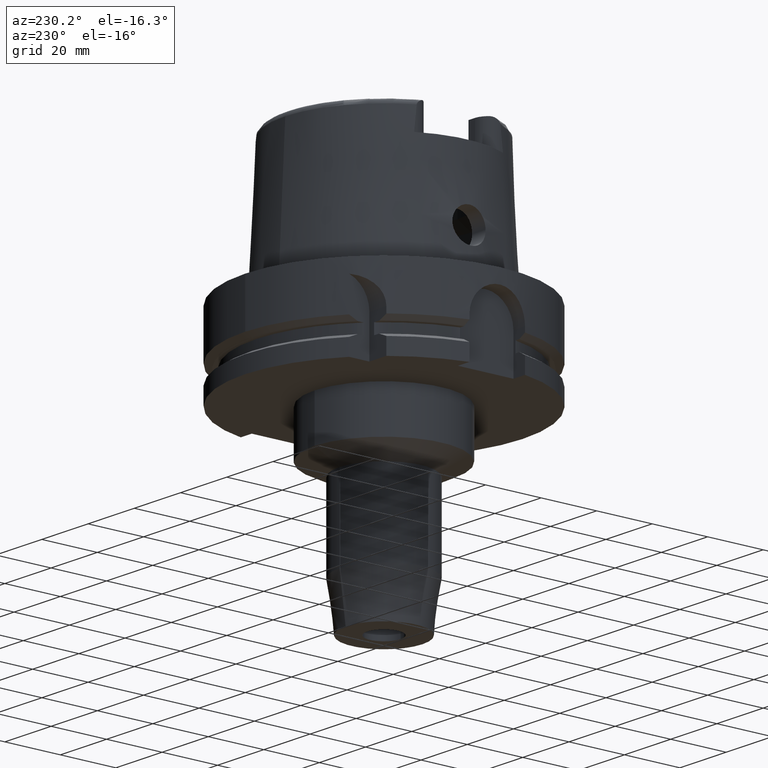
[diagram: clean part render]
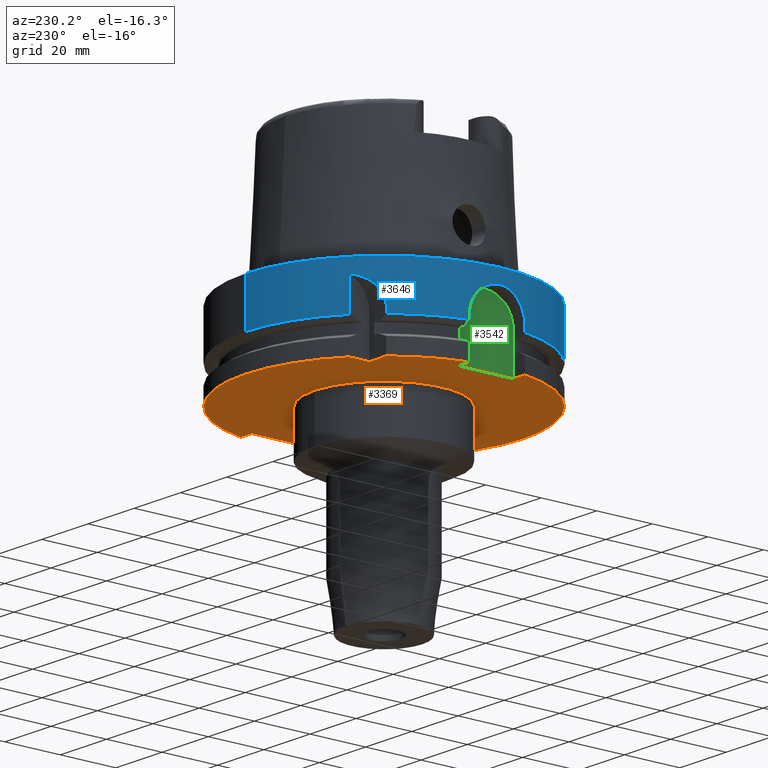
[diagram: same view with three faces highlighted in distinct colors, each labeled with its STEP entity id]
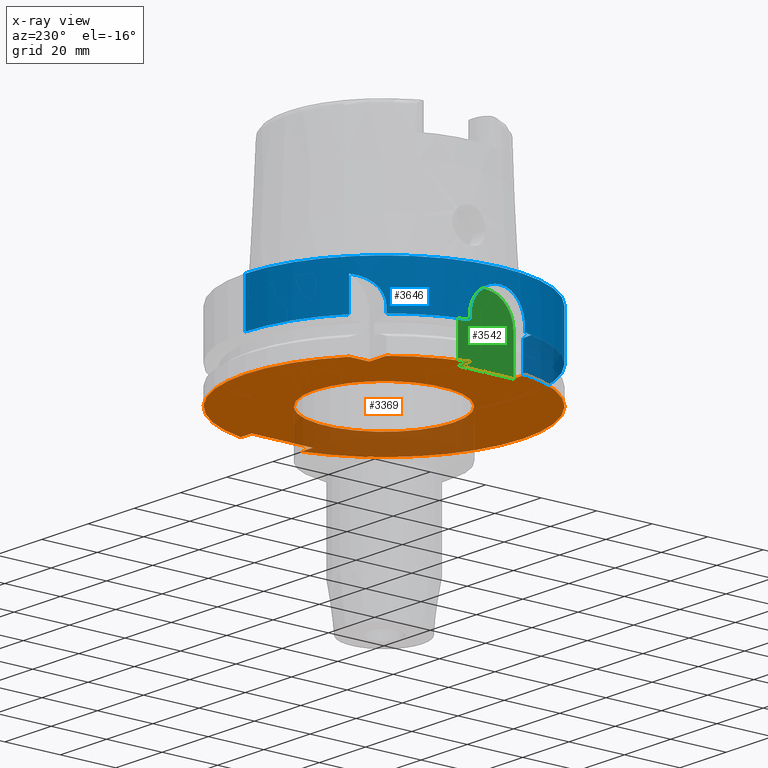
[diagram: x-ray of the same camera — body ghosted, the three highlighted faces saturated]
A machine part, auxiliary view with three faces highlighted in distinct colors.
The next image is the same camera in x-ray (body ghosted, the three faces saturated) — at least one of them is partly hidden behind the body in this view.
Their STEP definitions:

[orange] entity #3369 — the highlighted planar face has unit normal (0, 0, 1).
#1153=DIRECTION('',(-1.E0,-4.798503851106E-14,0.E0));
#1154=VECTOR('',#1153,7.329756630709E0);
#1155=CARTESIAN_POINT('',(-3.15E1,3.15E1,-2.9E1));
#1156=LINE('',#1155,#1154);
#1160=CARTESIAN_POINT('',(0.E0,0.E0,-2.9E1));
#1161=DIRECTION('',(0.E0,0.E0,1.E0));
#1162=DIRECTION('',(-7.765951326142E-1,6.3E-1,0.E0));
#1163=AXIS2_PLACEMENT_3D('',#1160,#1161,#1162);
#1168=DIRECTION('',(-1.E0,-4.627973610177E-14,0.E0));
#1169=VECTOR('',#1168,4.989794855662E0);
#1170=CARTESIAN_POINT('',(-4.4E1,-1.E1,-2.9E1));
#1171=LINE('',#1170,#1169);
#1175=CARTESIAN_POINT('',(0.E0,0.E0,-2.9E1));
#1176=DIRECTION('',(0.E0,0.E0,1.E0));
#1177=DIRECTION('',(-9.797958971133E-1,-2.E-1,0.E0));
#1178=AXIS2_PLACEMENT_3D('',#1175,#1176,#1177);
#1183=CARTESIAN_POINT('',(0.E0,0.E0,-2.9E1));
#1184=DIRECTION('',(0.E0,0.E0,1.E0));
#1185=DIRECTION('',(0.E0,-1.E0,0.E0));
#1186=AXIS2_PLACEMENT_3D('',#1183,#1184,#1185);
#1191=DIRECTION('',(-1.E0,-1.711257052401E-14,0.E0));
#1192=VECTOR('',#1191,4.774993593029E0);
#1193=CARTESIAN_POINT('',(4.877499359303E1,-1.1E1,-2.9E1));
#1194=LINE('',#1193,#1192);
#1198=CARTESIAN_POINT('',(0.E0,0.E0,-2.9E1));
#1199=DIRECTION('',(0.E0,0.E0,1.E0));
#1200=DIRECTION('',(9.754998718606E-1,2.2E-1,0.E0));
#1201=AXIS2_PLACEMENT_3D('',#1198,#1199,#1200);
#1206=CARTESIAN_POINT('',(0.E0,0.E0,-2.9E1));
#1207=DIRECTION('',(0.E0,0.E0,1.E0));
#1208=DIRECTION('',(0.E0,1.E0,0.E0));
#1209=AXIS2_PLACEMENT_3D('',#1206,#1207,#1208);
#1214=CARTESIAN_POINT('',(0.E0,0.E0,-2.9E1));
#1215=DIRECTION('',(0.E0,0.E0,-1.E0));
#1216=DIRECTION('',(0.E0,-1.E0,0.E0));
#1217=AXIS2_PLACEMENT_3D('',#1214,#1215,#1216);
#1222=CARTESIAN_POINT('',(0.E0,0.E0,-2.9E1));
#1223=DIRECTION('',(0.E0,0.E0,-1.E0));
#1224=DIRECTION('',(0.E0,1.E0,0.E0));
#1225=AXIS2_PLACEMENT_3D('',#1222,#1223,#1224);
#1230=DIRECTION('',(4.798503851106E-14,1.E0,0.E0));
#1231=VECTOR('',#1230,7.329756630709E0);
#1232=CARTESIAN_POINT('',(-3.15E1,3.15E1,-2.9E1));
#1233=LINE('',#1232,#1231);
#1276=DIRECTION('',(-1.E0,1.785659532940E-14,0.E0));
#1277=VECTOR('',#1276,4.774993593029E0);
#1278=CARTESIAN_POINT('',(4.877499359303E1,1.1E1,-2.9E1));
#1279=LINE('',#1278,#1277);
#1290=DIRECTION('',(0.E0,-1.E0,0.E0));
#1291=VECTOR('',#1290,2.2E1);
#1292=CARTESIAN_POINT('',(4.4E1,1.1E1,-2.9E1));
#1293=LINE('',#1292,#1291);
#1369=DIRECTION('',(0.E0,1.E0,0.E0));
#1370=VECTOR('',#1369,2.E1);
#1371=CARTESIAN_POINT('',(-4.4E1,-1.E1,-2.9E1));
#1372=LINE('',#1371,#1370);
#1392=DIRECTION('',(-1.E0,4.627973610177E-14,0.E0));
#1393=VECTOR('',#1392,4.989794855662E0);
#1394=CARTESIAN_POINT('',(-4.4E1,1.E1,-2.9E1));
#1395=LINE('',#1394,#1393);
#2345=CARTESIAN_POINT('',(0.E0,2.5E1,-2.9E1));
#2346=VERTEX_POINT('',#2345);
#2347=CARTESIAN_POINT('',(0.E0,-2.5E1,-2.9E1));
#2348=VERTEX_POINT('',#2347);
#2349=CARTESIAN_POINT('',(-3.15E1,3.15E1,-2.9E1));
#2350=CARTESIAN_POINT('',(-3.15E1,3.882975663071E1,-2.9E1));
#2351=VERTEX_POINT('',#2349);
#2352=VERTEX_POINT('',#2350);
#2353=CARTESIAN_POINT('',(-3.882975663071E1,3.15E1,-2.9E1));
#2354=VERTEX_POINT('',#2353);
#2355=CARTESIAN_POINT('',(-4.898979485566E1,1.E1,-2.9E1));
#2356=VERTEX_POINT('',#2355);
#2357=CARTESIAN_POINT('',(-4.4E1,1.E1,-2.9E1));
#2358=VERTEX_POINT('',#2357);
#2359=CARTESIAN_POINT('',(-4.4E1,-1.E1,-2.9E1));
#2360=VERTEX_POINT('',#2359);
#2361=CARTESIAN_POINT('',(-4.898979485566E1,-1.E1,-2.9E1));
#2362=VERTEX_POINT('',#2361);
#2363=CARTESIAN_POINT('',(-7.069043806178E-14,-5.E1,-2.9E1));
#2364=CARTESIAN_POINT('',(4.877499359303E1,-1.1E1,-2.9E1));
#2365=VERTEX_POINT('',#2363);
#2366=VERTEX_POINT('',#2364);
#2367=CARTESIAN_POINT('',(4.4E1,-1.1E1,-2.9E1));
#2368=VERTEX_POINT('',#2367);
#2369=CARTESIAN_POINT('',(4.4E1,1.1E1,-2.9E1));
#2370=VERTEX_POINT('',#2369);
#2371=CARTESIAN_POINT('',(4.877499359303E1,1.1E1,-2.9E1));
#2372=VERTEX_POINT('',#2371);
#2373=CARTESIAN_POINT('',(-6.019535474874E-14,5.E1,-2.9E1));
#2374=VERTEX_POINT('',#2373);
#3332=CARTESIAN_POINT('',(0.E0,0.E0,-2.9E1));
#3333=DIRECTION('',(0.E0,0.E0,1.E0));
#3334=DIRECTION('',(0.E0,1.E0,0.E0));
#3335=AXIS2_PLACEMENT_3D('',#3332,#3333,#3334);
#3336=PLANE('',#3335);
#3338=ORIENTED_EDGE('',*,*,#3337,.F.);
#3340=ORIENTED_EDGE('',*,*,#3339,.T.);
#3342=ORIENTED_EDGE('',*,*,#3341,.T.);
#3344=ORIENTED_EDGE('',*,*,#3343,.F.);
#3346=ORIENTED_EDGE('',*,*,#3345,.F.);
#3348=ORIENTED_EDGE('',*,*,#3347,.T.);
#3350=ORIENTED_EDGE('',*,*,#3349,.T.);
#3352=ORIENTED_EDGE('',*,*,#3351,.T.);
#3354=ORIENTED_EDGE('',*,*,#3353,.T.);
#3356=ORIENTED_EDGE('',*,*,#3355,.F.);
#3358=ORIENTED_EDGE('',*,*,#3357,.F.);
#3360=ORIENTED_EDGE('',*,*,#3359,.T.);
#3362=ORIENTED_EDGE('',*,*,#3361,.T.);
#3363=EDGE_LOOP('',(#3338,#3340,#3342,#3344,#3346,#3348,#3350,#3352,#3354,#3356,
#3358,#3360,#3362));
#3364=FACE_OUTER_BOUND('',#3363,.F.);
#3365=ORIENTED_EDGE('',*,*,#3311,.T.);
#3366=ORIENTED_EDGE('',*,*,#3327,.T.);
#3367=EDGE_LOOP('',(#3365,#3366));
#3368=FACE_BOUND('',#3367,.F.);
#1164=CIRCLE('',#1163,5.E1);
#1179=CIRCLE('',#1178,5.E1);
#1187=CIRCLE('',#1186,5.E1);
#1202=CIRCLE('',#1201,5.E1);
#1210=CIRCLE('',#1209,5.E1);
#1218=CIRCLE('',#1217,2.5E1);
#1226=CIRCLE('',#1225,2.5E1);
#3311=EDGE_CURVE('',#2348,#2346,#1218,.T.);
#3327=EDGE_CURVE('',#2346,#2348,#1226,.T.);
#3337=EDGE_CURVE('',#2351,#2352,#1233,.T.);
#3339=EDGE_CURVE('',#2351,#2354,#1156,.T.);
#3341=EDGE_CURVE('',#2354,#2356,#1164,.T.);
#3343=EDGE_CURVE('',#2358,#2356,#1395,.T.);
#3345=EDGE_CURVE('',#2360,#2358,#1372,.T.);
#3347=EDGE_CURVE('',#2360,#2362,#1171,.T.);
#3349=EDGE_CURVE('',#2362,#2365,#1179,.T.);
#3351=EDGE_CURVE('',#2365,#2366,#1187,.T.);
#3353=EDGE_CURVE('',#2366,#2368,#1194,.T.);
#3355=EDGE_CURVE('',#2370,#2368,#1293,.T.);
#3357=EDGE_CURVE('',#2372,#2370,#1279,.T.);
#3359=EDGE_CURVE('',#2372,#2374,#1202,.T.);
#3361=EDGE_CURVE('',#2374,#2352,#1210,.T.);
#3369=ADVANCED_FACE('',(#3364,#3368),#3336,.F.);

[blue] entity #3646 — the highlighted cylindrical surface (partial cylindrical patch) has radius 50 mm, axis along (0, 0, 1).
#1249=CARTESIAN_POINT('',(-3.150000355959E1,3.882975374305E1,
-1.675239179145E1));
#1434=CARTESIAN_POINT('',(-3.882975730068E1,3.149999917413E1,
-1.675240773890E1));
#1458=DIRECTION('',(-3.028823767049E-7,-2.457085509676E-7,-9.999999999999E-1));
#1459=VECTOR('',#1458,1.175239179145E1);
#1460=CARTESIAN_POINT('',(-3.15E1,3.882975663071E1,-5.000000000003E0));
#1461=LINE('',#1460,#1459);
#1465=DIRECTION('',(0.E0,2.969006079282E-14,-1.E0));
#1466=VECTOR('',#1465,1.675240473581E1);
#1467=CARTESIAN_POINT('',(0.E0,-5.E1,2.368475785867E-14));
#1468=LINE('',#1467,#1466);
#1472=DIRECTION('',(3.933032361779E-13,-2.534170336198E-14,1.E0));
#1473=VECTOR('',#1472,1.752404735809E0);
#1474=CARTESIAN_POINT('',(-4.898979485566E1,-1.E1,-1.675240473581E1));
#1475=LINE('',#1474,#1473);
#1479=DIRECTION('',(-4.014125812538E-13,-2.635537149646E-14,-1.E0));
#1480=VECTOR('',#1479,1.752404735809E0);
#1481=CARTESIAN_POINT('',(-4.898979485566E1,1.E1,-1.5E1));
#1482=LINE('',#1481,#1480);
#1486=DIRECTION('',(3.166955095345E-7,3.903884141555E-7,9.999999999999E-1));
#1487=VECTOR('',#1486,2.115509879686E0);
#1488=CARTESIAN_POINT('',(-3.882975730068E1,3.149999917413E1,
-1.675240773890E1));
#1489=LINE('',#1488,#1487);
#1493=CARTESIAN_POINT('',(-3.882975663071E1,3.15E1,-1.463689785921E1));
#1494=CARTESIAN_POINT('',(-3.882975663071E1,3.15E1,-1.433064803233E1));
#1495=CARTESIAN_POINT('',(-3.880705056296E1,3.152802066448E1,
-1.372017812259E1));
#1496=CARTESIAN_POINT('',(-3.870431505672E1,3.165424228568E1,
-1.280805712870E1));
#1497=CARTESIAN_POINT('',(-3.853134898971E1,3.186487739008E1,
-1.190703580362E1));
#1498=CARTESIAN_POINT('',(-3.828491004133E1,3.216100324139E1,
-1.102071004749E1));
#1499=CARTESIAN_POINT('',(-3.796157379828E1,3.254262098651E1,
-1.015741102110E1));
#1500=CARTESIAN_POINT('',(-3.755563743157E1,3.301103679744E1,
-9.321912596688E0));
#1501=CARTESIAN_POINT('',(-3.705884939259E1,3.356873427432E1,
-8.519818265426E0));
#1502=CARTESIAN_POINT('',(-3.646408685617E1,3.421504547700E1,
-7.761684897383E0));
#1503=CARTESIAN_POINT('',(-3.575808568325E1,3.495364276672E1,
-7.053872561831E0));
#1504=CARTESIAN_POINT('',(-3.493062799604E1,3.578229202033E1,
-6.409715318939E0));
#1505=CARTESIAN_POINT('',(-3.396218551338E1,3.670480651732E1,
-5.838564309226E0));
#1506=CARTESIAN_POINT('',(-3.283733424605E1,3.771697348972E1,
-5.356645395212E0));
#1507=CARTESIAN_POINT('',(-3.196697253866E1,3.845093285626E1,
-5.104966524152E0));
#1508=CARTESIAN_POINT('',(-3.15E1,3.882975663071E1,-5.000000000003E0));
#1531=CARTESIAN_POINT('',(0.E0,0.E0,-1.675240473581E1));
#1532=DIRECTION('',(0.E0,0.E0,1.E0));
#1533=DIRECTION('',(0.E0,1.E0,0.E0));
#1534=AXIS2_PLACEMENT_3D('',#1531,#1532,#1533);
#1689=DIRECTION('',(0.E0,-2.969006079282E-14,-1.E0));
#1690=VECTOR('',#1689,1.675240473581E1);
#1691=CARTESIAN_POINT('',(0.E0,5.E1,2.368475785867E-14));
#1692=LINE('',#1691,#1690);
#1764=CARTESIAN_POINT('',(0.E0,0.E0,-1.675240473581E1));
#1765=DIRECTION('',(0.E0,0.E0,1.E0));
#1766=DIRECTION('',(-9.797958971133E-1,-2.E-1,0.E0));
#1767=AXIS2_PLACEMENT_3D('',#1764,#1765,#1766);
#1918=CARTESIAN_POINT('',(0.E0,0.E0,1.421085471520E-14));
#1919=DIRECTION('',(0.E0,0.E0,-1.E0));
#1920=DIRECTION('',(0.E0,-1.E0,0.E0));
#1921=AXIS2_PLACEMENT_3D('',#1918,#1919,#1920);
#1950=CARTESIAN_POINT('',(-4.898979485566E1,1.E1,-1.5E1));
#1951=CARTESIAN_POINT('',(-4.898979485566E1,1.E1,-1.430993891426E1));
#1952=CARTESIAN_POINT('',(-4.901946876668E1,9.856614411408E0,
-1.292530793198E1));
#1953=CARTESIAN_POINT('',(-4.914637872950E1,9.212549068015E0,
-1.092502392860E1));
#1954=CARTESIAN_POINT('',(-4.933511997668E1,8.159236789539E0,
-9.090510315856E0));
#1955=CARTESIAN_POINT('',(-4.955239631670E1,6.738320453179E0,
-7.510320269654E0));
#1956=CARTESIAN_POINT('',(-4.975872816348E1,5.020257974574E0,
-6.265963771503E0));
#1957=CARTESIAN_POINT('',(-4.991769268779E1,3.092336635729E0,
-5.413413991368E0));
#1958=CARTESIAN_POINT('',(-5.000353416040E1,1.043155346532E0,
-4.981927010811E0));
#1959=CARTESIAN_POINT('',(-5.000349587826E1,-1.045120568634E0,
-4.982135242149E0));
#1960=CARTESIAN_POINT('',(-4.991757797862E1,-3.094155274510E0,
-5.414004125485E0));
#1961=CARTESIAN_POINT('',(-4.975855895237E1,-5.021932594448E0,
-6.266919586635E0));
#1962=CARTESIAN_POINT('',(-4.955219466617E1,-6.739788171475E0,
-7.511650305557E0));
#1963=CARTESIAN_POINT('',(-4.933493542040E1,-8.160331123246E0,
-9.092009925173E0));
#1964=CARTESIAN_POINT('',(-4.914621819690E1,-9.213411542427E0,
-1.092695526439E1));
#1965=CARTESIAN_POINT('',(-4.901940089172E1,-9.856902593598E0,
-1.292700398927E1));
#1966=CARTESIAN_POINT('',(-4.898979485566E1,-1.E1,-1.431061586623E1));
#1967=CARTESIAN_POINT('',(-4.898979485566E1,-1.E1,-1.5E1));
#1986=CARTESIAN_POINT('',(0.E0,0.E0,-1.675240473581E1));
#1987=DIRECTION('',(0.E0,0.E0,1.E0));
#1988=DIRECTION('',(-7.765951326142E-1,6.3E-1,0.E0));
#1989=AXIS2_PLACEMENT_3D('',#1986,#1987,#1988);
#1994=CARTESIAN_POINT('',(-4.898979485566E1,1.E1,-1.675240473581E1));
#2384=VERTEX_POINT('',#1249);
#2385=CARTESIAN_POINT('',(-3.15E1,3.882975663071E1,-5.000000000003E0));
#2386=VERTEX_POINT('',#2385);
#2405=CARTESIAN_POINT('',(-4.898979485566E1,-1.E1,-1.5E1));
#2406=VERTEX_POINT('',#2405);
#2407=CARTESIAN_POINT('',(-4.898979485566E1,-1.E1,-1.675240473581E1));
#2408=VERTEX_POINT('',#2407);
#2427=VERTEX_POINT('',#1994);
#2428=CARTESIAN_POINT('',(-4.898979485566E1,1.E1,-1.5E1));
#2429=VERTEX_POINT('',#2428);
#2468=CARTESIAN_POINT('',(0.E0,-5.E1,-1.675240473581E1));
#2469=VERTEX_POINT('',#2468);
#2473=CARTESIAN_POINT('',(0.E0,5.E1,-1.675240473581E1));
#2474=VERTEX_POINT('',#2473);
#2475=VERTEX_POINT('',#1434);
#2476=CARTESIAN_POINT('',(0.E0,5.E1,2.368475785867E-14));
#2477=VERTEX_POINT('',#2476);
#2478=CARTESIAN_POINT('',(0.E0,-5.E1,1.421085471520E-14));
#2479=VERTEX_POINT('',#2478);
#2480=CARTESIAN_POINT('',(-3.882975663071E1,3.15E1,-1.463689785921E1));
#2481=VERTEX_POINT('',#2480);
#3620=CARTESIAN_POINT('',(0.E0,0.E0,-1.0225E2));
#3621=DIRECTION('',(0.E0,0.E0,1.E0));
#3622=DIRECTION('',(0.E0,1.E0,0.E0));
#3623=AXIS2_PLACEMENT_3D('',#3620,#3621,#3622);
#3624=CYLINDRICAL_SURFACE('',#3623,5.E1);
#3625=ORIENTED_EDGE('',*,*,#3388,.T.);
#3627=ORIENTED_EDGE('',*,*,#3626,.F.);
#3629=ORIENTED_EDGE('',*,*,#3628,.F.);
#3631=ORIENTED_EDGE('',*,*,#3630,.F.);
#3633=ORIENTED_EDGE('',*,*,#3632,.T.);
#3635=ORIENTED_EDGE('',*,*,#3634,.F.);
#3636=ORIENTED_EDGE('',*,*,#3511,.T.);
#3638=ORIENTED_EDGE('',*,*,#3637,.F.);
#3639=ORIENTED_EDGE('',*,*,#3561,.T.);
#3641=ORIENTED_EDGE('',*,*,#3640,.F.);
#3642=ORIENTED_EDGE('',*,*,#3592,.T.);
#3643=ORIENTED_EDGE('',*,*,#3613,.T.);
#3644=EDGE_LOOP('',(#3625,#3627,#3629,#3631,#3633,#3635,#3636,#3638,#3639,#3641,
#3642,#3643));
#3645=FACE_OUTER_BOUND('',#3644,.F.);
#1509=B_SPLINE_CURVE_WITH_KNOTS('',3,(#1493,#1494,#1495,#1496,#1497,#1498,#1499,
#1500,#1501,#1502,#1503,#1504,#1505,#1506,#1507,#1508),.UNSPECIFIED.,.F.,.F.,(4,
1,1,1,1,1,1,1,1,1,1,1,1,4),(0.E0,7.692307692308E-2,1.538461538462E-1,
2.307692307692E-1,3.076923076923E-1,3.846153846154E-1,4.615384615385E-1,
5.384615384615E-1,6.153846153846E-1,6.923076923077E-1,7.692307692308E-1,
8.461538461538E-1,9.230769230769E-1,1.E0),.UNSPECIFIED.);
#1535=CIRCLE('',#1534,5.E1);
#1768=CIRCLE('',#1767,5.E1);
#1922=CIRCLE('',#1921,5.E1);
#1968=B_SPLINE_CURVE_WITH_KNOTS('',3,(#1950,#1951,#1952,#1953,#1954,#1955,#1956,
#1957,#1958,#1959,#1960,#1961,#1962,#1963,#1964,#1965,#1966,#1967),
.UNSPECIFIED.,.F.,.F.,(4,1,1,1,1,1,1,1,1,1,1,1,1,1,1,4),(0.E0,6.666666666667E-2,
1.333333333333E-1,2.E-1,2.666666666667E-1,3.333333333333E-1,4.E-1,
4.666666666667E-1,5.333333333333E-1,6.E-1,6.666666666667E-1,7.333333333333E-1,
8.E-1,8.666666666667E-1,9.333333333333E-1,1.E0),.UNSPECIFIED.);
#1990=CIRCLE('',#1989,5.E1);
#3388=EDGE_CURVE('',#2386,#2384,#1461,.T.);
#3511=EDGE_CURVE('',#2408,#2406,#1475,.T.);
#3561=EDGE_CURVE('',#2429,#2427,#1482,.T.);
#3592=EDGE_CURVE('',#2475,#2481,#1489,.T.);
#3613=EDGE_CURVE('',#2481,#2386,#1509,.T.);
#3626=EDGE_CURVE('',#2474,#2384,#1535,.T.);
#3628=EDGE_CURVE('',#2477,#2474,#1692,.T.);
#3630=EDGE_CURVE('',#2479,#2477,#1922,.T.);
#3632=EDGE_CURVE('',#2479,#2469,#1468,.T.);
#3634=EDGE_CURVE('',#2408,#2469,#1768,.T.);
#3637=EDGE_CURVE('',#2429,#2406,#1968,.T.);
#3640=EDGE_CURVE('',#2475,#2427,#1990,.T.);
#3646=ADVANCED_FACE('',(#3645),#3624,.T.);

[green] entity #3542 — the highlighted planar face has unit normal (1, 0, 0).
#1355=DIRECTION('',(0.E0,0.E0,1.E0));
#1356=VECTOR('',#1355,1.4E1);
#1357=CARTESIAN_POINT('',(-4.4E1,-1.E1,-2.9E1));
#1358=LINE('',#1357,#1356);
#1369=DIRECTION('',(0.E0,1.E0,0.E0));
#1370=VECTOR('',#1369,2.E1);
#1371=CARTESIAN_POINT('',(-4.4E1,-1.E1,-2.9E1));
#1372=LINE('',#1371,#1370);
#1376=CARTESIAN_POINT('',(-4.4E1,0.E0,-1.5E1));
#1377=DIRECTION('',(1.E0,0.E0,0.E0));
#1378=DIRECTION('',(0.E0,1.E0,0.E0));
#1379=AXIS2_PLACEMENT_3D('',#1376,#1377,#1378);
#1384=CARTESIAN_POINT('',(-4.4E1,0.E0,-1.5E1));
#1385=DIRECTION('',(1.E0,0.E0,0.E0));
#1386=DIRECTION('',(0.E0,0.E0,1.E0));
#1387=AXIS2_PLACEMENT_3D('',#1384,#1385,#1386);
#1406=DIRECTION('',(0.E0,0.E0,-1.E0));
#1407=VECTOR('',#1406,1.4E1);
#1408=CARTESIAN_POINT('',(-4.4E1,1.E1,-1.5E1));
#1409=LINE('',#1408,#1407);
#2357=CARTESIAN_POINT('',(-4.4E1,1.E1,-2.9E1));
#2358=VERTEX_POINT('',#2357);
#2359=CARTESIAN_POINT('',(-4.4E1,-1.E1,-2.9E1));
#2360=VERTEX_POINT('',#2359);
#2403=CARTESIAN_POINT('',(-4.4E1,-1.E1,-1.5E1));
#2404=VERTEX_POINT('',#2403);
#2416=CARTESIAN_POINT('',(-4.4E1,1.E1,-1.5E1));
#2417=VERTEX_POINT('',#2416);
#2418=CARTESIAN_POINT('',(-4.4E1,0.E0,-5.E0));
#2419=VERTEX_POINT('',#2418);
#3527=CARTESIAN_POINT('',(-4.4E1,0.E0,0.E0));
#3528=DIRECTION('',(1.E0,0.E0,0.E0));
#3529=DIRECTION('',(0.E0,0.E0,1.E0));
#3530=AXIS2_PLACEMENT_3D('',#3527,#3528,#3529);
#3531=PLANE('',#3530);
#3532=ORIENTED_EDGE('',*,*,#3345,.T.);
#3534=ORIENTED_EDGE('',*,*,#3533,.F.);
#3536=ORIENTED_EDGE('',*,*,#3535,.T.);
#3538=ORIENTED_EDGE('',*,*,#3537,.T.);
#3539=ORIENTED_EDGE('',*,*,#3507,.F.);
#3540=EDGE_LOOP('',(#3532,#3534,#3536,#3538,#3539));
#3541=FACE_OUTER_BOUND('',#3540,.F.);
#1380=CIRCLE('',#1379,1.E1);
#1388=CIRCLE('',#1387,1.E1);
#3345=EDGE_CURVE('',#2360,#2358,#1372,.T.);
#3507=EDGE_CURVE('',#2360,#2404,#1358,.T.);
#3533=EDGE_CURVE('',#2417,#2358,#1409,.T.);
#3535=EDGE_CURVE('',#2417,#2419,#1380,.T.);
#3537=EDGE_CURVE('',#2419,#2404,#1388,.T.);
#3542=ADVANCED_FACE('',(#3541),#3531,.F.);